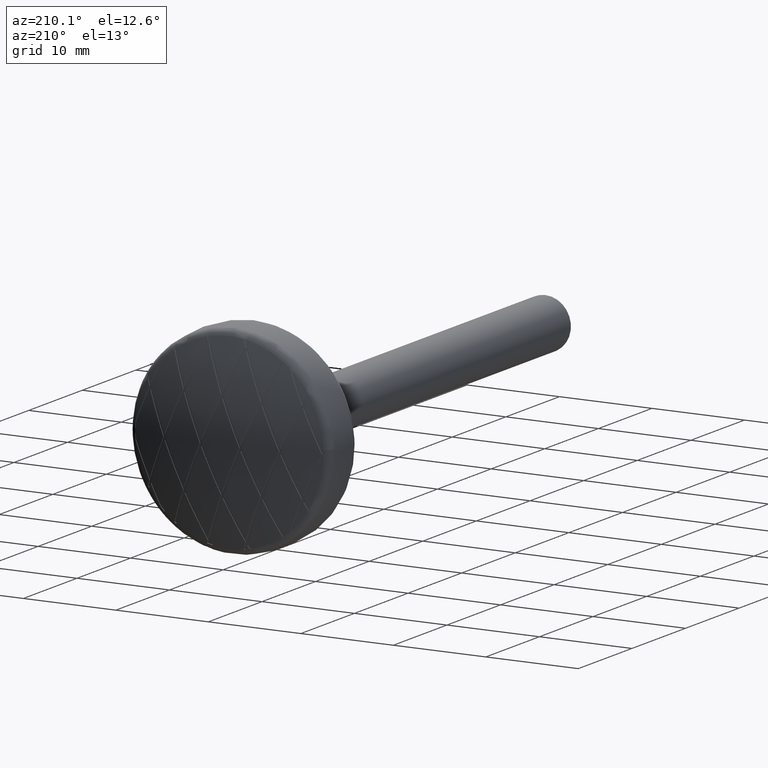
[diagram: clean part render]
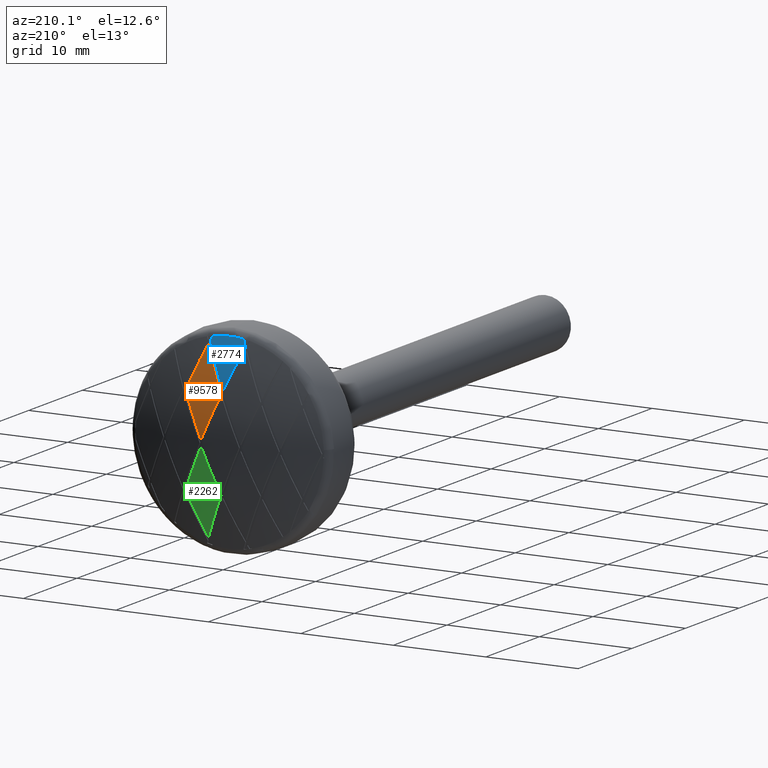
[diagram: same view with three faces highlighted in distinct colors, each labeled with its STEP entity id]
A machine part, auxiliary view with three faces highlighted in distinct colors.
Their STEP definitions:

[orange] entity #9578 — the highlighted spherical surface has radius 31.4724 mm.
#738 = DIRECTION ( 'NONE',  ( 0.9138115486202577076, -0.000000000000000000, -0.4061384660534466673 ) ) ;
#923 = EDGE_CURVE ( 'NONE', #16098, #9924, #3304, .T. ) ;
#1051 = AXIS2_PLACEMENT_3D ( 'NONE', #8840, #3754, #11541 ) ;
#1144 = EDGE_CURVE ( 'NONE', #9924, #12088, #16089, .T. ) ;
#2823 = CIRCLE ( 'NONE', #15725, 31.40378538903669181 ) ;
#3235 = DIRECTION ( 'NONE',  ( -0.9138115486202570414, -0.000000000000000000, -0.4061384660534481661 ) ) ;
#3292 = CARTESIAN_POINT ( 'NONE',  ( 5.243106247888703386, -0.9724364245106043025, 2.330269443506093996 ) ) ;
#3304 = CIRCLE ( 'NONE', #11216, 31.41932603206655727 ) ;
#3491 = ORIENTED_EDGE ( 'NONE', *, *, #923, .T. ) ;
#3514 = DIRECTION ( 'NONE',  ( -0.9138115486202570414, -0.000000000000000000, -0.4061384660534481661 ) ) ;
#3754 = DIRECTION ( 'NONE',  ( 0.000000000000000000, 0.000000000000000000, 1.000000000000000000 ) ) ;
#4205 = ORIENTED_EDGE ( 'NONE', *, *, #8598, .T. ) ;
#4330 = CARTESIAN_POINT ( 'NONE',  ( 0.1367896916916080674, 30.13030984098584852, 4.807776806306124584 ) ) ;
#4339 = CARTESIAN_POINT ( 'NONE',  ( 1.670103092783509435, -0.9724364245106043025, -0.7422680412371138736 ) ) ;
#4742 = CARTESIAN_POINT ( 'NONE',  ( 2.136789691691611814, 30.42587018183111525, 0.3077768063061227521 ) ) ;
#5446 = ORIENTED_EDGE ( 'NONE', *, *, #16614, .F. ) ;
#6049 = DIRECTION ( 'NONE',  ( 0.4061384660534481106, 1.243574994833634460E-14, -0.9138115486202569304 ) ) ;
#7185 = CARTESIAN_POINT ( 'NONE',  ( 1.898555979938566285, -0.9724364245106043025, 0.8438026577504750270 ) ) ;
#7663 = CIRCLE ( 'NONE', #15331, 31.41932603206655372 ) ;
#8226 = DIRECTION ( 'NONE',  ( -0.4061384660534470004, 0.000000000000000000, -0.9138115486202573745 ) ) ;
#8598 = EDGE_CURVE ( 'NONE', #12088, #9486, #7663, .T. ) ;
#8840 = CARTESIAN_POINT ( 'NONE',  ( -3.515553213312507605E-18, -0.9724364245106043025, 0.000000000000000000 ) ) ;
#9486 = VERTEX_POINT ( 'NONE', #4742 ) ;
#9578 = ADVANCED_FACE ( 'NONE', ( #9665 ), #14092, .T. ) ;
#9665 = FACE_OUTER_BOUND ( 'NONE', #9694, .T. ) ;
#9694 = EDGE_LOOP ( 'NONE', ( #3491, #10223, #4205, #5446 ) ) ;
#9783 = DIRECTION ( 'NONE',  ( 0.4061384660534465563, -2.042843584411546708E-14, 0.9138115486202574855 ) ) ;
#9924 = VERTEX_POINT ( 'NONE', #14993 ) ;
#10223 = ORIENTED_EDGE ( 'NONE', *, *, #1144, .T. ) ;
#11077 = CARTESIAN_POINT ( 'NONE',  ( -1.670103092783504106, -0.9724364245106043025, 0.7422680412371106540 ) ) ;
#11216 = AXIS2_PLACEMENT_3D ( 'NONE', #11077, #738, #9783 ) ;
#11541 = DIRECTION ( 'NONE',  ( 1.000000000000000000, 0.000000000000000000, 0.000000000000000000 ) ) ;
#12088 = VERTEX_POINT ( 'NONE', #14331 ) ;
#12269 = DIRECTION ( 'NONE',  ( 0.4061384660534481661, 0.000000000000000000, -0.9138115486202569304 ) ) ;
#14092 = SPHERICAL_SURFACE ( 'NONE', #1051, 31.47243642451060097 ) ;
#14331 = CARTESIAN_POINT ( 'NONE',  ( 4.139390778056818654, 29.85301850998954976, 4.813629250627839085 ) ) ;
#14993 = CARTESIAN_POINT ( 'NONE',  ( 2.139390778056811993, 29.01412009296029737, 9.313629250627846190 ) ) ;
#15331 = AXIS2_PLACEMENT_3D ( 'NONE', #4339, #15975, #8226 ) ;
#15725 = AXIS2_PLACEMENT_3D ( 'NONE', #7185, #3514, #6049 ) ;
#15975 = DIRECTION ( 'NONE',  ( -0.9138115486202574855, -0.000000000000000000, 0.4061384660534470559 ) ) ;
#16089 = CIRCLE ( 'NONE', #16409, 30.94501471463334141 ) ;
#16098 = VERTEX_POINT ( 'NONE', #4330 ) ;
#16409 = AXIS2_PLACEMENT_3D ( 'NONE', #3292, #3235, #12269 ) ;
#16614 = EDGE_CURVE ( 'NONE', #16098, #9486, #2823, .T. ) ;

[blue] entity #2774 — the highlighted spherical surface has radius 31.4724 mm.
#109 = EDGE_LOOP ( 'NONE', ( #247, #12241, #15491, #14876, #9720 ) ) ;
#208 = DIRECTION ( 'NONE',  ( 0.4061384660534461677, 6.217874974168173088E-15, 0.9138115486202578186 ) ) ;
#247 = ORIENTED_EDGE ( 'NONE', *, *, #673, .F. ) ;
#319 = CARTESIAN_POINT ( 'NONE',  ( 5.243106247888702498, -0.9724364245106043025, 2.330269443506089555 ) ) ;
#673 = EDGE_CURVE ( 'NONE', #13267, #6626, #7758, .T. ) ;
#1625 = EDGE_CURVE ( 'NONE', #5292, #3334, #14432, .T. ) ;
#2774 = ADVANCED_FACE ( 'NONE', ( #3901 ), #14218, .T. ) ;
#2903 = DIRECTION ( 'NONE',  ( 0.4061384660534475555, 6.394845255267445694E-14, -0.9138115486202572635 ) ) ;
#3249 = DIRECTION ( 'NONE',  ( 0.4061384660534481661, -1.243574994833634302E-14, -0.9138115486202568194 ) ) ;
#3334 = VERTEX_POINT ( 'NONE', #5536 ) ;
#3744 = AXIS2_PLACEMENT_3D ( 'NONE', #319, #8148, #2903 ) ;
#3901 = FACE_OUTER_BOUND ( 'NONE', #109, .T. ) ;
#4554 = DIRECTION ( 'NONE',  ( -0.9138115486202570414, -0.000000000000000000, -0.4061384660534482771 ) ) ;
#4558 = CARTESIAN_POINT ( 'NONE',  ( -1.865811394673605683, 29.03238506331393154, 9.313629250627847966 ) ) ;
#4909 = AXIS2_PLACEMENT_3D ( 'NONE', #8449, #4554, #3249 ) ;
#5157 = CARTESIAN_POINT ( 'NONE',  ( -1.520864430883254181, 28.79999999999975202, 10.08975991915614223 ) ) ;
#5292 = VERTEX_POINT ( 'NONE', #8444 ) ;
#5536 = CARTESIAN_POINT ( 'NONE',  ( 2.002601086365197514, 28.92626570236012995, 9.621406056933977879 ) ) ;
#6626 = VERTEX_POINT ( 'NONE', #5157 ) ;
#6896 = DIRECTION ( 'NONE',  ( -0.000000000000000000, -1.000000000000000000, -0.000000000000000000 ) ) ;
#6930 = CARTESIAN_POINT ( 'NONE',  ( -3.515553213312507605E-18, -0.9724364245106043025, 0.000000000000000000 ) ) ;
#7069 = CIRCLE ( 'NONE', #14407, 30.99032505859681663 ) ;
#7188 = EDGE_CURVE ( 'NONE', #14987, #5292, #8709, .T. ) ;
#7686 = EDGE_CURVE ( 'NONE', #14987, #6626, #7069, .T. ) ;
#7758 = CIRCLE ( 'NONE', #7964, 10.20373871888807216 ) ;
#7964 = AXIS2_PLACEMENT_3D ( 'NONE', #10797, #6896, #13268 ) ;
#8148 = DIRECTION ( 'NONE',  ( -0.9138115486202571525, -0.000000000000000000, -0.4061384660534476110 ) ) ;
#8315 = AXIS2_PLACEMENT_3D ( 'NONE', #6930, #9540, #8392 ) ;
#8392 = DIRECTION ( 'NONE',  ( 1.000000000000000000, 0.000000000000000000, 0.000000000000000000 ) ) ;
#8411 = AXIS2_PLACEMENT_3D ( 'NONE', #13054, #13000, #208 ) ;
#8444 = CARTESIAN_POINT ( 'NONE',  ( -4.987329993433320396E-15, 30.08147421056644433, 5.115553612612254497 ) ) ;
#8449 = CARTESIAN_POINT ( 'NONE',  ( 1.898555979938566507, -0.9724364245106043025, 0.8438026577504754711 ) ) ;
#8709 = CIRCLE ( 'NONE', #4909, 31.40378538903669536 ) ;
#8755 = CARTESIAN_POINT ( 'NONE',  ( 1.816203223865791472, 28.80000000000000426, 10.04080124755764380 ) ) ;
#8816 = EDGE_CURVE ( 'NONE', #13267, #3334, #11672, .T. ) ;
#9540 = DIRECTION ( 'NONE',  ( 0.000000000000000000, 0.000000000000000000, 1.000000000000000000 ) ) ;
#9618 = CARTESIAN_POINT ( 'NONE',  ( -5.014653360733652754, -0.9724364245106043025, 2.228734826992730067 ) ) ;
#9720 = ORIENTED_EDGE ( 'NONE', *, *, #7686, .T. ) ;
#10797 = CARTESIAN_POINT ( 'NONE',  ( 0.000000000000000000, 28.80000000000000426, 0.000000000000000000 ) ) ;
#11672 = CIRCLE ( 'NONE', #3744, 30.94501471463333431 ) ;
#12206 = DIRECTION ( 'NONE',  ( 0.9138115486202574855, -0.000000000000000000, -0.4061384660534469448 ) ) ;
#12241 = ORIENTED_EDGE ( 'NONE', *, *, #8816, .T. ) ;
#13000 = DIRECTION ( 'NONE',  ( 0.9138115486202578186, -0.000000000000000000, -0.4061384660534461677 ) ) ;
#13054 = CARTESIAN_POINT ( 'NONE',  ( -1.898555979938566507, -0.9724364245106043025, 0.8438026577504704751 ) ) ;
#13267 = VERTEX_POINT ( 'NONE', #8755 ) ;
#13268 = DIRECTION ( 'NONE',  ( 0.000000000000000000, 0.000000000000000000, -1.000000000000000000 ) ) ;
#14218 = SPHERICAL_SURFACE ( 'NONE', #8315, 31.47243642451060097 ) ;
#14407 = AXIS2_PLACEMENT_3D ( 'NONE', #9618, #12206, #16499 ) ;
#14432 = CIRCLE ( 'NONE', #8411, 31.40378538903668826 ) ;
#14876 = ORIENTED_EDGE ( 'NONE', *, *, #7188, .F. ) ;
#14987 = VERTEX_POINT ( 'NONE', #4558 ) ;
#15491 = ORIENTED_EDGE ( 'NONE', *, *, #1625, .F. ) ;
#16499 = DIRECTION ( 'NONE',  ( 0.4061384660534469448, 3.907844865700620427E-14, 0.9138115486202574855 ) ) ;

[green] entity #2262 — the highlighted spherical surface has radius 31.4724 mm.
#127 = ORIENTED_EDGE ( 'NONE', *, *, #5502, .F. ) ;
#226 = CARTESIAN_POINT ( 'NONE',  ( 2.136789691691614035, 30.42587018183111525, -0.3077768063061274151 ) ) ;
#261 = AXIS2_PLACEMENT_3D ( 'NONE', #16247, #766, #9807 ) ;
#766 = DIRECTION ( 'NONE',  ( -0.9138115486202568194, -0.000000000000000000, -0.4061384660534486102 ) ) ;
#886 = EDGE_CURVE ( 'NONE', #4571, #8795, #6736, .T. ) ;
#1589 = DIRECTION ( 'NONE',  ( -0.9138115486202574855, -0.000000000000000000, 0.4061384660534469448 ) ) ;
#2262 = ADVANCED_FACE ( 'NONE', ( #6952 ), #6353, .T. ) ;
#2368 = VERTEX_POINT ( 'NONE', #12662 ) ;
#3221 = DIRECTION ( 'NONE',  ( -0.9138115486202568194, -0.000000000000000000, -0.4061384660534484992 ) ) ;
#4122 = VERTEX_POINT ( 'NONE', #226 ) ;
#4493 = ORIENTED_EDGE ( 'NONE', *, *, #16230, .T. ) ;
#4571 = VERTEX_POINT ( 'NONE', #6230 ) ;
#5502 = EDGE_CURVE ( 'NONE', #4122, #4571, #13580, .T. ) ;
#6023 = ORIENTED_EDGE ( 'NONE', *, *, #886, .F. ) ;
#6230 = CARTESIAN_POINT ( 'NONE',  ( 0.1367896916916182815, 30.13030984098584497, -4.807776806306125472 ) ) ;
#6353 = SPHERICAL_SURFACE ( 'NONE', #10150, 31.47243642451060097 ) ;
#6736 = CIRCLE ( 'NONE', #8611, 31.41932603206655372 ) ;
#6952 = FACE_OUTER_BOUND ( 'NONE', #12927, .T. ) ;
#7063 = CARTESIAN_POINT ( 'NONE',  ( -3.515553213312507605E-18, -0.9724364245106043025, 0.000000000000000000 ) ) ;
#7123 = CARTESIAN_POINT ( 'NONE',  ( -1.670103092783502552, -0.9724364245106043025, -0.7422680412371140957 ) ) ;
#7781 = AXIS2_PLACEMENT_3D ( 'NONE', #10566, #1589, #13218 ) ;
#8611 = AXIS2_PLACEMENT_3D ( 'NONE', #7123, #3221, #12371 ) ;
#8794 = CARTESIAN_POINT ( 'NONE',  ( 5.243106247888713156, -0.9724364245106043025, -2.330269443506087779 ) ) ;
#8795 = VERTEX_POINT ( 'NONE', #15611 ) ;
#8905 = DIRECTION ( 'NONE',  ( -0.9138115486202575966, -0.000000000000000000, 0.4061384660534466118 ) ) ;
#9807 = DIRECTION ( 'NONE',  ( 0.4061384660534485547, -7.105092804566511404E-15, -0.9138115486202567084 ) ) ;
#10150 = AXIS2_PLACEMENT_3D ( 'NONE', #7063, #13551, #13717 ) ;
#10165 = CIRCLE ( 'NONE', #12741, 30.94501471463333431 ) ;
#10566 = CARTESIAN_POINT ( 'NONE',  ( 1.898555979938571170, -0.9724364245106043025, -0.8438026577504743608 ) ) ;
#12305 = EDGE_CURVE ( 'NONE', #2368, #8795, #10165, .T. ) ;
#12371 = DIRECTION ( 'NONE',  ( 0.4061384660534484436, 0.000000000000000000, -0.9138115486202567084 ) ) ;
#12662 = CARTESIAN_POINT ( 'NONE',  ( 4.139390778056824871, 29.85301850998954976, -4.813629250627840861 ) ) ;
#12741 = AXIS2_PLACEMENT_3D ( 'NONE', #8794, #8905, #16536 ) ;
#12927 = EDGE_LOOP ( 'NONE', ( #4493, #15646, #6023, #127 ) ) ;
#13218 = DIRECTION ( 'NONE',  ( -0.4061384660534469448, 0.000000000000000000, -0.9138115486202574855 ) ) ;
#13551 = DIRECTION ( 'NONE',  ( 0.000000000000000000, 0.000000000000000000, 1.000000000000000000 ) ) ;
#13580 = CIRCLE ( 'NONE', #7781, 31.40378538903668826 ) ;
#13717 = DIRECTION ( 'NONE',  ( 1.000000000000000000, 0.000000000000000000, 0.000000000000000000 ) ) ;
#13944 = CIRCLE ( 'NONE', #261, 31.41932603206655372 ) ;
#15611 = CARTESIAN_POINT ( 'NONE',  ( 2.139390778056830644, 29.01412009296029737, -9.313629250627840861 ) ) ;
#15646 = ORIENTED_EDGE ( 'NONE', *, *, #12305, .T. ) ;
#16230 = EDGE_CURVE ( 'NONE', #4122, #2368, #13944, .T. ) ;
#16247 = CARTESIAN_POINT ( 'NONE',  ( 1.670103092783504772, -0.9724364245106043025, 0.7422680412371154279 ) ) ;
#16536 = DIRECTION ( 'NONE',  ( -0.4061384660534466118, 1.332434610222556157E-14, -0.9138115486202575966 ) ) ;